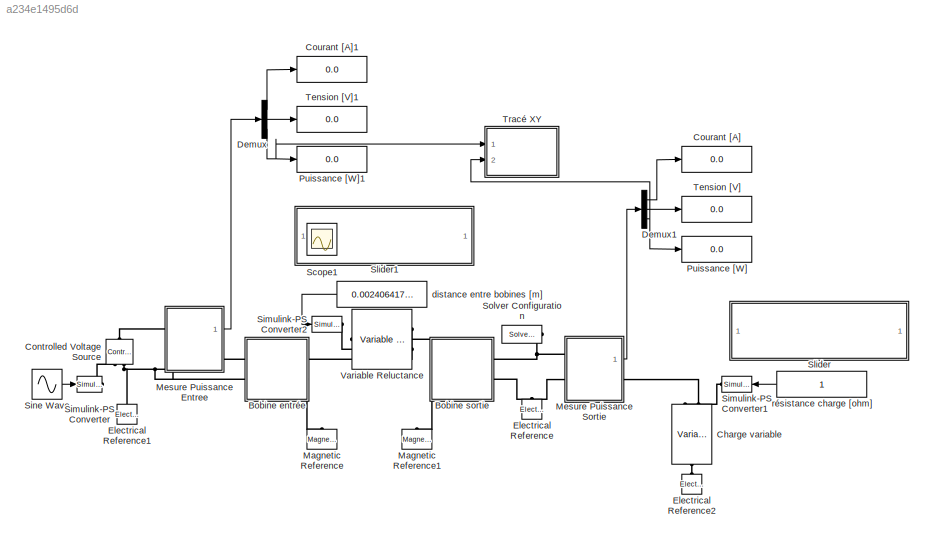
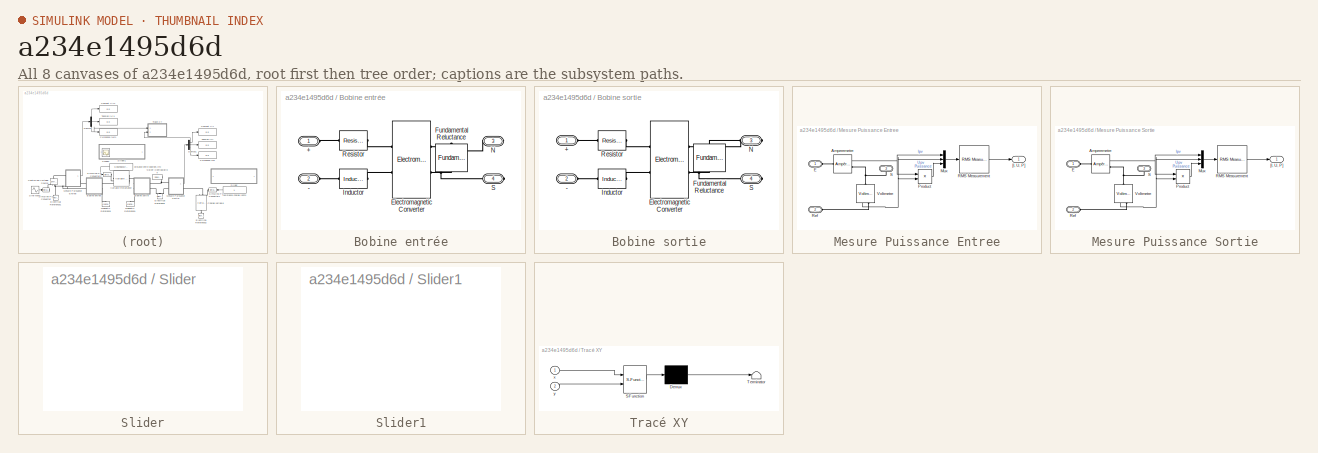
[diagram: thumbnail index - all 8 canvases of the model, root first then tree order]
MODEL slx_a234e1495d6d
KIND model
CONFIG AbsTol = auto
CONFIG EnableMultiTasking = off
CONFIG FixedStep = 1/5000
CONFIG MaxStep = auto
CONFIG MinStep = auto
CONFIG RelTol = 1e-3
CONFIG SampleTimeConstraint = Unconstrained
CONFIG Solver = VariableStepAuto
CONFIG SolverName = VariableStepAuto
CONFIG StartTime = 0.0
CONFIG StopTime = inf
BLOCK [SubSystem] Bobine entrée
  Ports = [0, 0, 0, 0, 0, 2, 2]
  RequestExecContextInheritance = off
  Variant = off
BLOCK [PMIOPort] Bobine entrée/+
  Port = 1
  Side = Left
BLOCK [PMIOPort] Bobine entrée/-
  Port = 2
  Side = Left
BLOCK [Reference] Bobine entrée/Electromagnetic Converter  REF=fl_lib/Magnetic/Magnetic Elements/Electromagnetic
Converter
  Ports = [0, 0, 0, 0, 0, 2, 2]
  SourceBlock = fl_lib/Magnetic/Magnetic Elements/Electromagnetic\nConverter
  SourceProductBaseCode = SS
  SourceProductName = Simscape
  SourceType = Electromagnetic\nConverter
BLOCK [Reference] Bobine entrée/Fundamental Reluctance  REF=fl_lib/Magnetic/Magnetic Elements/Fundamental
Reluctance
  Ports = [0, 0, 0, 0, 0, 1, 1]
  SourceBlock = fl_lib/Magnetic/Magnetic Elements/Fundamental\nReluctance
  SourceProductBaseCode = SS
  SourceProductName = Simscape
  SourceType = Fundamental\nReluctance
BLOCK [Reference] Bobine entrée/Inductor  REF=fl_lib/Electrical/Electrical Elements/Inductor
  Ports = [0, 0, 0, 0, 0, 1, 1]
  SourceBlock = fl_lib/Electrical/Electrical Elements/Inductor
  SourceProductBaseCode = SS
  SourceProductName = Simscape
  SourceType = Inductor
BLOCK [PMIOPort] Bobine entrée/N
  Port = 3
  Side = Right
BLOCK [Reference] Bobine entrée/Resistor  REF=fl_lib/Electrical/Electrical Elements/Resistor
  Ports = [0, 0, 0, 0, 0, 1, 1]
  SourceBlock = fl_lib/Electrical/Electrical Elements/Resistor
  SourceProductBaseCode = SS
  SourceProductName = Simscape
  SourceType = Resistor
BLOCK [PMIOPort] Bobine entrée/S
  Port = 4
  Side = Right
BLOCK [SubSystem] Bobine sortie
  Ports = [0, 0, 0, 0, 0, 2, 2]
  RequestExecContextInheritance = off
  Variant = off
BLOCK [PMIOPort] Bobine sortie/+
  Port = 1
  Side = Left
BLOCK [PMIOPort] Bobine sortie/-
  Port = 2
  Side = Left
BLOCK [Reference] Bobine sortie/Electromagnetic Converter  REF=fl_lib/Magnetic/Magnetic Elements/Electromagnetic
Converter
  Ports = [0, 0, 0, 0, 0, 2, 2]
  SourceBlock = fl_lib/Magnetic/Magnetic Elements/Electromagnetic\nConverter
  SourceProductBaseCode = SS
  SourceProductName = Simscape
  SourceType = Electromagnetic\nConverter
BLOCK [Reference] Bobine sortie/Fundamental Reluctance  REF=fl_lib/Magnetic/Magnetic Elements/Fundamental
Reluctance
  Ports = [0, 0, 0, 0, 0, 1, 1]
  SourceBlock = fl_lib/Magnetic/Magnetic Elements/Fundamental\nReluctance
  SourceProductBaseCode = SS
  SourceProductName = Simscape
  SourceType = Fundamental\nReluctance
BLOCK [Reference] Bobine sortie/Inductor  REF=fl_lib/Electrical/Electrical Elements/Inductor
  Ports = [0, 0, 0, 0, 0, 1, 1]
  SourceBlock = fl_lib/Electrical/Electrical Elements/Inductor
  SourceProductBaseCode = SS
  SourceProductName = Simscape
  SourceType = Inductor
BLOCK [PMIOPort] Bobine sortie/N
  Port = 3
  Side = Right
BLOCK [Reference] Bobine sortie/Resistor  REF=fl_lib/Electrical/Electrical Elements/Resistor
  Ports = [0, 0, 0, 0, 0, 1, 1]
  SourceBlock = fl_lib/Electrical/Electrical Elements/Resistor
  SourceProductBaseCode = SS
  SourceProductName = Simscape
  SourceType = Resistor
BLOCK [PMIOPort] Bobine sortie/S
  Port = 4
  Side = Right
BLOCK [Reference] Charge variable  REF=fl_lib/Electrical/Electrical Elements/Variable Resistor
  Ports = [0, 0, 0, 0, 0, 2, 1]
  SourceBlock = fl_lib/Electrical/Electrical Elements/Variable Resistor
  SourceProductBaseCode = SS
  SourceProductName = Simscape
  SourceType = Variable Resistor
BLOCK [Reference] Controlled Voltage Source  REF=fl_lib/Electrical/Electrical Sources/Controlled Voltage
Source
  Ports = [0, 0, 0, 0, 0, 1, 2]
  SourceBlock = fl_lib/Electrical/Electrical Sources/Controlled Voltage\nSource
  SourceProductBaseCode = SS
  SourceProductName = Simscape
  SourceType = Controlled Voltage\nSource
BLOCK [Display] Courant [A]
  Decimation = 1
  Ports = [1]
BLOCK [Display] Courant [A]1
  Decimation = 1
  Ports = [1]
BLOCK [Demux] Demux
  DisplayOption = bar
  Outputs = 3
  Ports = [1, 3]
BLOCK [Demux] Demux1
  DisplayOption = bar
  Outputs = 3
  Ports = [1, 3]
BLOCK [Reference] Electrical Reference  REF=fl_lib/Electrical/Electrical Elements/Electrical Reference
  Ports = [0, 0, 0, 0, 0, 1]
  SourceBlock = fl_lib/Electrical/Electrical Elements/Electrical Reference
  SourceProductBaseCode = SS
  SourceProductName = Simscape
  SourceType = Electrical Reference
BLOCK [Reference] Electrical Reference1  REF=fl_lib/Electrical/Electrical Elements/Electrical Reference
  Ports = [0, 0, 0, 0, 0, 1]
  SourceBlock = fl_lib/Electrical/Electrical Elements/Electrical Reference
  SourceProductBaseCode = SS
  SourceProductName = Simscape
  SourceType = Electrical Reference
BLOCK [Reference] Electrical Reference2  REF=fl_lib/Electrical/Electrical Elements/Electrical Reference
  Ports = [0, 0, 0, 0, 0, 1]
  SourceBlock = fl_lib/Electrical/Electrical Elements/Electrical Reference
  SourceProductBaseCode = SS
  SourceProductName = Simscape
  SourceType = Electrical Reference
BLOCK [Reference] Magnetic Reference  REF=fl_lib/Magnetic/Magnetic Elements/Magnetic Reference
  Ports = [0, 0, 0, 0, 0, 1]
  SourceBlock = fl_lib/Magnetic/Magnetic Elements/Magnetic Reference
  SourceProductBaseCode = SS
  SourceProductName = Simscape
  SourceType = Magnetic Reference
BLOCK [Reference] Magnetic Reference1  REF=fl_lib/Magnetic/Magnetic Elements/Magnetic Reference
  Ports = [0, 0, 0, 0, 0, 1]
  SourceBlock = fl_lib/Magnetic/Magnetic Elements/Magnetic Reference
  SourceProductBaseCode = SS
  SourceProductName = Simscape
  SourceType = Magnetic Reference
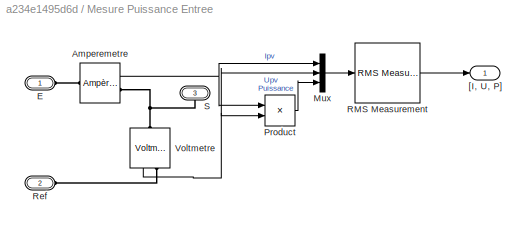
BLOCK [SubSystem] Mesure Puissance Entree
  Ports = [0, 1, 0, 0, 0, 2, 1]
  RequestExecContextInheritance = off
  Variant = off
BLOCK [Reference] Mesure Puissance Entree/Amperemetre  REF=Library_SII/Electronique/Ampèremètre
  Ports = [0, 1, 0, 0, 0, 1, 1]
  SourceBlock = Library_SII/Electronique/Ampèremètre
  SourceProductName = SII
  SourceType = Ampèremètre
BLOCK [PMIOPort] Mesure Puissance Entree/E
  Port = 1
  Side = Left
BLOCK [Mux] Mesure Puissance Entree/Mux
  DisplayOption = bar
  Inputs = 3
  Ports = [3, 1]
BLOCK [Product] Mesure Puissance Entree/Product
  InputSameDT = off
  OutDataTypeStr = Inherit: Inherit via internal rule
  Ports = [2, 1]
  RndMeth = Floor
  SaturateOnIntegerOverflow = off
BLOCK [Reference] Mesure Puissance Entree/RMS Measurement  REF=peRmsMeasurement/RMS
Measurement
  Ports = [1, 1]
  SourceBlock = peRmsMeasurement/RMS\nMeasurement
  SourceType = RMS Measurement
BLOCK [PMIOPort] Mesure Puissance Entree/Ref
  Port = 2
  Side = Left
BLOCK [PMIOPort] Mesure Puissance Entree/S
  Port = 3
  Side = Right
BLOCK [Reference] Mesure Puissance Entree/Voltmetre  REF=Library_SII/Electronique/Voltmètre
  Ports = [0, 1, 0, 0, 0, 1, 1]
  SourceBlock = Library_SII/Electronique/Voltmètre
  SourceProductName = SII
  SourceType = Voltmètre
BLOCK [Outport] Mesure Puissance Entree/[I, U, P]
  IconDisplay = Port number
BLOCK [SubSystem] Mesure Puissance Sortie
  Ports = [0, 1, 0, 0, 0, 2, 1]
  RequestExecContextInheritance = off
  Variant = off
BLOCK [Reference] Mesure Puissance Sortie/Amperemetre  REF=Library_SII/Electronique/Ampèremètre
  Ports = [0, 1, 0, 0, 0, 1, 1]
  SourceBlock = Library_SII/Electronique/Ampèremètre
  SourceProductName = SII
  SourceType = Ampèremètre
BLOCK [PMIOPort] Mesure Puissance Sortie/E
  Port = 1
  Side = Left
BLOCK [Mux] Mesure Puissance Sortie/Mux
  DisplayOption = bar
  Inputs = 3
  Ports = [3, 1]
BLOCK [Product] Mesure Puissance Sortie/Product
  InputSameDT = off
  OutDataTypeStr = Inherit: Inherit via internal rule
  Ports = [2, 1]
  RndMeth = Floor
  SaturateOnIntegerOverflow = off
BLOCK [Reference] Mesure Puissance Sortie/RMS Measurement  REF=peRmsMeasurement/RMS
Measurement
  Ports = [1, 1]
  SourceBlock = peRmsMeasurement/RMS\nMeasurement
  SourceType = RMS Measurement
BLOCK [PMIOPort] Mesure Puissance Sortie/Ref
  Port = 2
  Side = Left
BLOCK [PMIOPort] Mesure Puissance Sortie/S
  Port = 3
  Side = Right
BLOCK [Reference] Mesure Puissance Sortie/Voltmetre  REF=Library_SII/Electronique/Voltmètre
  Ports = [0, 1, 0, 0, 0, 1, 1]
  SourceBlock = Library_SII/Electronique/Voltmètre
  SourceProductName = SII
  SourceType = Voltmètre
BLOCK [Outport] Mesure Puissance Sortie/[I, U, P]
  IconDisplay = Port number
BLOCK [Display] Puissance [W]
  Decimation = 1
  Ports = [1]
BLOCK [Display] Puissance [W]1
  Decimation = 1
  Ports = [1]
BLOCK [Scope] Scope1
  IOType = viewer
  NumInputPorts = 1
  Ports = []
  ScopeSpecificationString = Simulink.scopes.TimeScopeBlockCfg('CurrentConfiguration', extmgr.ConfigurationSet(extmgr.Configuration('Core','General UI',true),extmgr.Configuration('Core','Source UI',true),extmgr.Configuration('Sources','WiredSimulink',true,'DataLoggingVariableName','ScopeData1'),extmgr.Configuration('Visuals','Time Domain',true,'SerializedDisplays',{struct('MinYLimReal','-10.00000','MaxYLimReal','10.00000','YL...<+2736ch>
BLOCK [Reference] Simulink-PS Converter  REF=nesl_utility/Simulink-PS
Converter
  Ports = [1, 0, 0, 0, 0, 0, 1]
  SourceBlock = nesl_utility/Simulink-PS\nConverter
  SourceProductBaseCode = SS
  SourceProductName = Simscape
  SourceType = Simulink-PS\nConverter
BLOCK [Reference] Simulink-PS Converter1  REF=nesl_utility/Simulink-PS
Converter
  Ports = [1, 0, 0, 0, 0, 0, 1]
  SourceBlock = nesl_utility/Simulink-PS\nConverter
  SourceProductBaseCode = SS
  SourceProductName = Simscape
  SourceType = Simulink-PS\nConverter
BLOCK [Reference] Simulink-PS Converter2  REF=nesl_utility/Simulink-PS
Converter
  Ports = [1, 0, 0, 0, 0, 0, 1]
  SourceBlock = nesl_utility/Simulink-PS\nConverter
  SourceProductBaseCode = SS
  SourceProductName = Simscape
  SourceType = Simulink-PS\nConverter
BLOCK [Sin] Sine Wave
  Amplitude = 5
  Frequency = 50*2*pi
  Ports = [0, 1]
  SampleTime = 0
BLOCK [SubSystem] Slider
  DialogController = hmiCreateDDGDialog
  IsWebBlock = on
  MaskHideContents = on
  Ports = []
  RequestExecContextInheritance = off
  Variant = off
BLOCK [SubSystem] Slider1
  DialogController = hmiCreateDDGDialog
  IsWebBlock = on
  MaskHideContents = on
  Ports = []
  RequestExecContextInheritance = off
  Variant = off
BLOCK [Reference] Solver Configuration  REF=nesl_utility/Solver
Configuration
  Ports = [0, 0, 0, 0, 0, 0, 1]
  SourceBlock = nesl_utility/Solver\nConfiguration
  SourceProductBaseCode = SS
  SourceProductName = Simscape
  SourceType = Solver\nConfiguration
BLOCK [Display] Tension [V]
  Decimation = 1
  Ports = [1]
BLOCK [Display] Tension [V]1
  Decimation = 1
  Ports = [1]
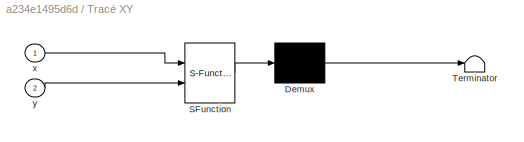
BLOCK [SubSystem] Tracé XY
  ErrorFcn = Stateflow.Translate.translate
  PermitHierarchicalResolution = ExplicitOnly
  Ports = [2]
  RequestExecContextInheritance = off
  SFBlockType = MATLAB Function
  SystemSampleTime = 10
  TreatAsAtomicUnit = on
  Variant = off
BLOCK [Demux] Tracé XY/ Demux 
  Outputs = 1
  Ports = [1, 1]
BLOCK [S-Function] Tracé XY/ SFunction 
  EnableBusSupport = on
  FunctionName = sf_sfun
  PortCounts = [2 1]
  Ports = [2, 1]
  SFcnIsStateOwnerBlock = off
  SFunctionDeploymentMode = off
  Tag = Stateflow S-Function Induction 2
BLOCK [Terminator] Tracé XY/ Terminator 
BLOCK [Inport] Tracé XY/x
  IconDisplay = Port number
BLOCK [Inport] Tracé XY/y
  IconDisplay = Port number
  Port = 2
BLOCK [Reference] Variable Reluctance  REF=fl_lib/Magnetic/Magnetic Elements/Variable Reluctance
  Ports = [0, 0, 0, 0, 0, 2, 1]
  SourceBlock = fl_lib/Magnetic/Magnetic Elements/Variable Reluctance
  SourceProductBaseCode = SS
  SourceProductName = Simscape
  SourceType = Variable Reluctance
BLOCK [Constant] distance entre bobines [m]
  Value = 0.0024064171123
BLOCK [Constant] résistance charge [ohm]
LINE Demux1:1 -> Courant [A]:1
LINE Demux1:2 -> Tension [V]:1
NET Demux1:3 -> Puissance [W]:1, Tracé XY:2
LINE Demux:1 -> Courant [A]1:1
LINE Demux:2 -> Tension [V]1:1
NET Demux:3 -> Puissance [W]1:1, Tracé XY:1
NET Mesure Puissance Entree/Amperemetre:1 -> Mesure Puissance Entree/Mux:1, Mesure Puissance Entree/Product:1
LINE Mesure Puissance Entree/Mux:1 -> Mesure Puissance Entree/RMS Measurement:1
LINE Mesure Puissance Entree/Product:1 -> Mesure Puissance Entree/Mux:3
LINE Mesure Puissance Entree/RMS Measurement:1 -> Mesure Puissance Entree/[I, U, P]:1
NET Mesure Puissance Entree/Voltmetre:1 -> Mesure Puissance Entree/Mux:2, Mesure Puissance Entree/Product:2
LINE Mesure Puissance Entree:1 -> Demux:1
NET Mesure Puissance Sortie/Amperemetre:1 -> Mesure Puissance Sortie/Mux:1, Mesure Puissance Sortie/Product:1
LINE Mesure Puissance Sortie/Mux:1 -> Mesure Puissance Sortie/RMS Measurement:1
LINE Mesure Puissance Sortie/Product:1 -> Mesure Puissance Sortie/Mux:3
LINE Mesure Puissance Sortie/RMS Measurement:1 -> Mesure Puissance Sortie/[I, U, P]:1
NET Mesure Puissance Sortie/Voltmetre:1 -> Mesure Puissance Sortie/Mux:2, Mesure Puissance Sortie/Product:2
LINE Mesure Puissance Sortie:1 -> Demux1:1
LINE Sine Wave:1 -> Simulink-PS Converter:1
LINE distance entre bobines [m]:1 -> Simulink-PS Converter2:1
LINE résistance charge [ohm]:1 -> Simulink-PS Converter1:1
PLINE Bobine entrée/+:RConn1 -- Bobine entrée/Resistor:LConn1
PLINE Bobine entrée/-:RConn1 -- Bobine entrée/Inductor:LConn1
PLINE Bobine entrée/Electromagnetic Converter:LConn1 -- Bobine entrée/Resistor:RConn1
PLINE Bobine entrée/Electromagnetic Converter:LConn2 -- Bobine entrée/Inductor:RConn1
PNET net1: Bobine entrée/Electromagnetic Converter:RConn1 -- Bobine entrée/Fundamental Reluctance:LConn1 -- Bobine entrée/N:RConn1
PNET net2: Bobine entrée/Electromagnetic Converter:RConn2 -- Bobine entrée/Fundamental Reluctance:RConn1 -- Bobine entrée/S:RConn1
PLINE Bobine entrée:LConn1 -- Mesure Puissance Entree:RConn1
PNET net3: Bobine entrée:LConn2 -- Controlled Voltage Source:RConn2 -- Electrical Reference1:LConn1 -- Mesure Puissance Entree:LConn2
PLINE Bobine entrée:RConn1 -- Variable Reluctance:LConn1
PLINE Bobine entrée:RConn2 -- Magnetic Reference:LConn1
PLINE Bobine sortie/+:RConn1 -- Bobine sortie/Resistor:LConn1
PLINE Bobine sortie/-:RConn1 -- Bobine sortie/Inductor:LConn1
PLINE Bobine sortie/Electromagnetic Converter:LConn1 -- Bobine sortie/Resistor:RConn1
PLINE Bobine sortie/Electromagnetic Converter:LConn2 -- Bobine sortie/Inductor:RConn1
PNET net4: Bobine sortie/Electromagnetic Converter:RConn1 -- Bobine sortie/Fundamental Reluctance:LConn1 -- Bobine sortie/N:RConn1
PNET net5: Bobine sortie/Electromagnetic Converter:RConn2 -- Bobine sortie/Fundamental Reluctance:RConn1 -- Bobine sortie/S:RConn1
PNET net6: Bobine sortie:LConn1 -- Mesure Puissance Sortie:LConn1 -- Solver Configuration:RConn1
PNET net7: Bobine sortie:LConn2 -- Electrical Reference:LConn1 -- Mesure Puissance Sortie:LConn2
PLINE Bobine sortie:RConn1 -- Variable Reluctance:RConn1
PLINE Bobine sortie:RConn2 -- Magnetic Reference1:LConn1
PLINE Charge variable:LConn1 -- Simulink-PS Converter1:RConn1
PLINE Charge variable:LConn2 -- Mesure Puissance Sortie:RConn1
PLINE Charge variable:RConn1 -- Electrical Reference2:LConn1
PLINE Controlled Voltage Source:LConn1 -- Mesure Puissance Entree:LConn1
PLINE Controlled Voltage Source:RConn1 -- Simulink-PS Converter:RConn1
PLINE Mesure Puissance Entree/Amperemetre:LConn1 -- Mesure Puissance Entree/E:RConn1
PNET net8: Mesure Puissance Entree/Amperemetre:RConn1 -- Mesure Puissance Entree/S:RConn1 -- Mesure Puissance Entree/Voltmetre:LConn1
PLINE Mesure Puissance Entree/Ref:RConn1 -- Mesure Puissance Entree/Voltmetre:RConn1
PLINE Mesure Puissance Sortie/Amperemetre:LConn1 -- Mesure Puissance Sortie/E:RConn1
PNET net9: Mesure Puissance Sortie/Amperemetre:RConn1 -- Mesure Puissance Sortie/S:RConn1 -- Mesure Puissance Sortie/Voltmetre:LConn1
PLINE Mesure Puissance Sortie/Ref:RConn1 -- Mesure Puissance Sortie/Voltmetre:RConn1
PLINE Simulink-PS Converter2:RConn1 -- Variable Reluctance:LConn2
note: NET lines group one-source signal fan-out (src -> all destinations, sorted); 1:1 wires keep LINE; PNET lines group multi-terminal physical nets as a canonical sorted terminal list (undirected conserving connections); 2-terminal nets keep the pairwise PLINE form
CHART Tracé XY states=1 transitions=1
  STATE_LABEL 'eML_blk_kernel()'
  STATE_LABEL "SCRIPT:\nfunction fcn(x, y)\ncoder.extrinsic('plot')\nplot(x,y,'-o','Markersize',6,'MarkerFaceColor','g');\nhold on;\nset(gca,'XLim',[0 12],'Ylim',[0 6])"
